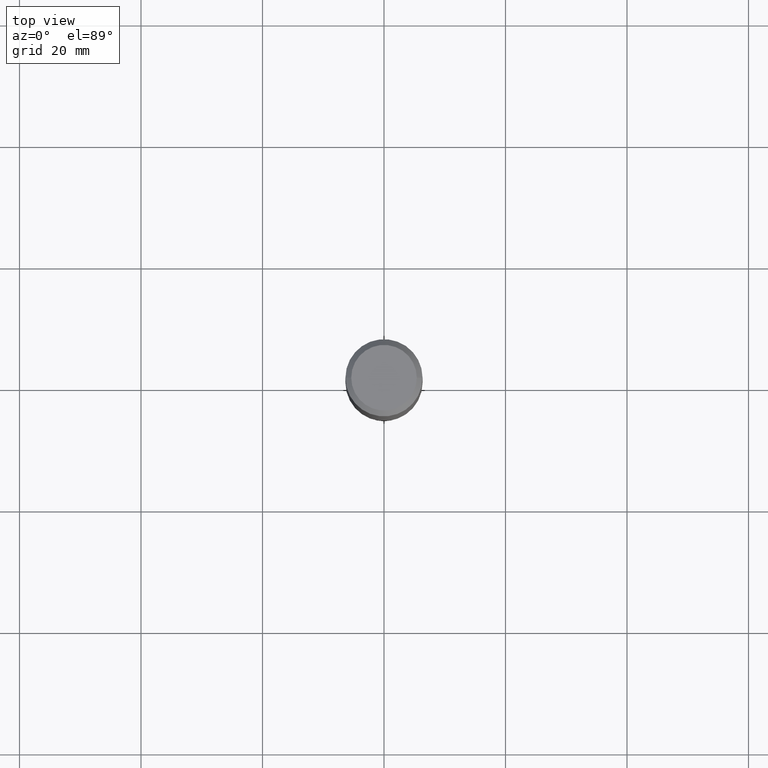
[diagram: clean part render]
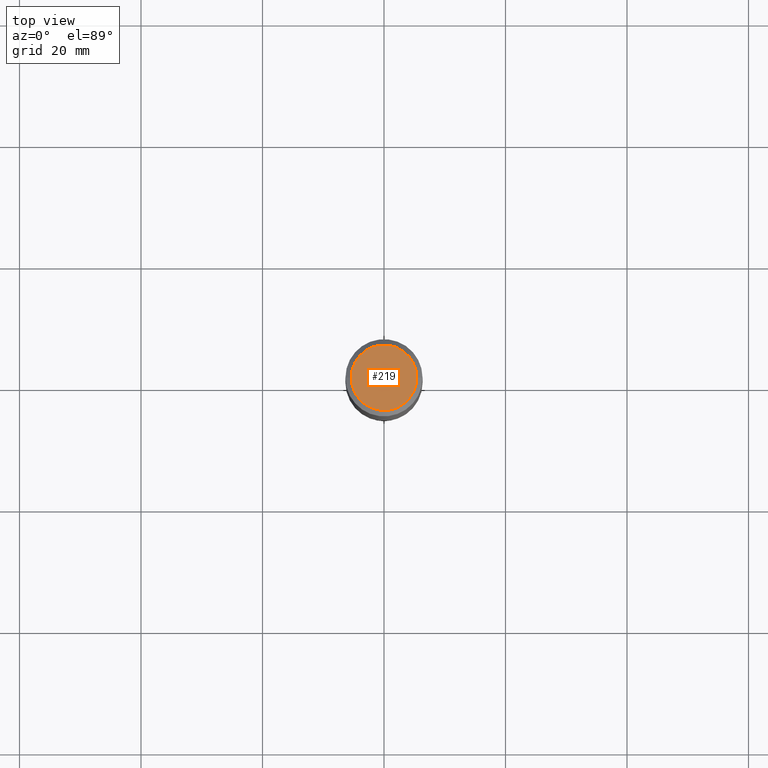
[diagram: same view with one face highlighted and labeled with its STEP entity id]
A machine part, top view. The second image highlights one B-rep face of the part: STEP entity #219.
In plain terms, the highlighted planar face has unit normal (0, -0, -1).
Its self-contained STEP definition (entity closure, byte-faithful):
#51 = CIRCLE ( 'NONE', #331, 0.2124999999999999944 ) ;
#60 = DIRECTION ( 'NONE',  ( 1.000000000000000000, -6.982962677686266711E-15, 4.876376119033268190E-29 ) ) ;
#82 = CARTESIAN_POINT ( 'NONE',  ( 0.2124999999999999944, -1.651955437087975937E-15, 6.505936120481282700E-18 ) ) ;
#95 = CARTESIAN_POINT ( 'NONE',  ( -1.591006383764330940E-46, 2.271535455632768948E-32, 6.505936120470318766E-18 ) ) ;
#153 = EDGE_LOOP ( 'NONE', ( #461, #465 ) ) ;
#211 = CARTESIAN_POINT ( 'NONE',  ( -7.955031918821654702E-47, 1.135767727816384474E-32, 3.252968060235159383E-18 ) ) ;
#219 = ADVANCED_FACE ( 'NONE', ( #390 ), #470, .F. ) ;
#239 = VERTEX_POINT ( 'NONE', #82 ) ;
#242 = CIRCLE ( 'NONE', #309, 0.2124999999999999944 ) ;
#249 = EDGE_CURVE ( 'NONE', #407, #239, #51, .T. ) ;
#260 = DIRECTION ( 'NONE',  ( -2.445468806185136597E-29, 3.491481338843145583E-15, 1.000000000000000000 ) ) ;
#277 = DIRECTION ( 'NONE',  ( -2.445468806185136597E-29, 3.491481338843145583E-15, 1.000000000000000000 ) ) ;
#309 = AXIS2_PLACEMENT_3D ( 'NONE', #454, #277, #428 ) ;
#318 = CARTESIAN_POINT ( 'NONE',  ( -0.2124999999999999944, 1.549344844111639638E-15, 6.505936120459713055E-18 ) ) ;
#331 = AXIS2_PLACEMENT_3D ( 'NONE', #95, #260, #60 ) ;
#355 = DIRECTION ( 'NONE',  ( 2.438088387897960049E-29, -3.491481338843145188E-15, -1.000000000000000000 ) ) ;
#390 = FACE_OUTER_BOUND ( 'NONE', #153, .T. ) ;
#407 = VERTEX_POINT ( 'NONE', #318 ) ;
#417 = EDGE_CURVE ( 'NONE', #239, #407, #242, .T. ) ;
#427 = DIRECTION ( 'NONE',  ( -1.000000000000000000, 6.982962677686265922E-15, -4.876176775795935793E-29 ) ) ;
#428 = DIRECTION ( 'NONE',  ( 1.000000000000000000, -6.982962677686266711E-15, 4.876376119033268190E-29 ) ) ;
#454 = CARTESIAN_POINT ( 'NONE',  ( -1.591006383764330940E-46, 2.271535455632768948E-32, 6.505936120470318766E-18 ) ) ;
#456 = AXIS2_PLACEMENT_3D ( 'NONE', #211, #355, #427 ) ;
#461 = ORIENTED_EDGE ( 'NONE', *, *, #249, .T. ) ;
#465 = ORIENTED_EDGE ( 'NONE', *, *, #417, .T. ) ;
#470 = PLANE ( 'NONE',  #456 ) ;